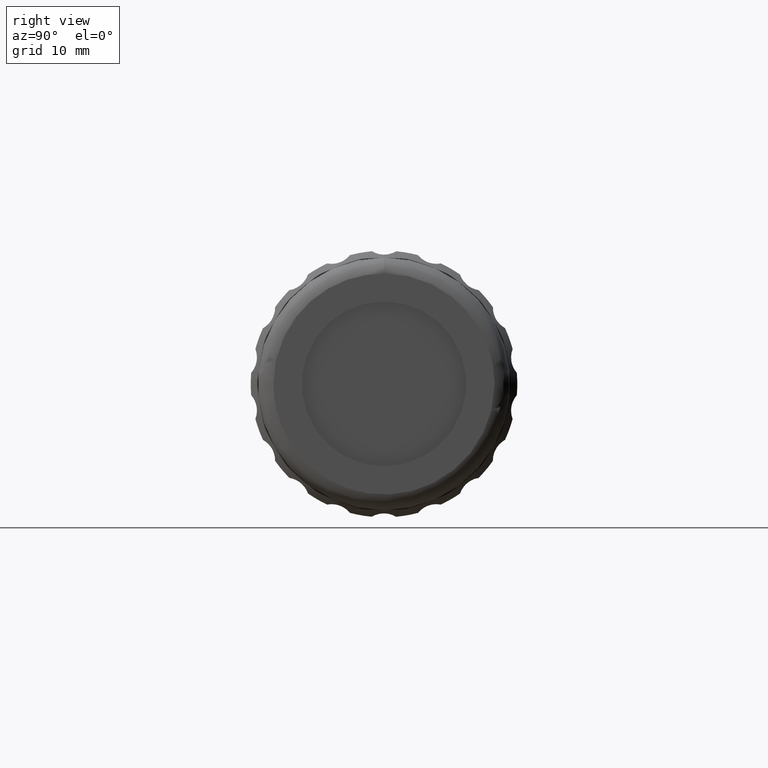
[diagram: clean part render]
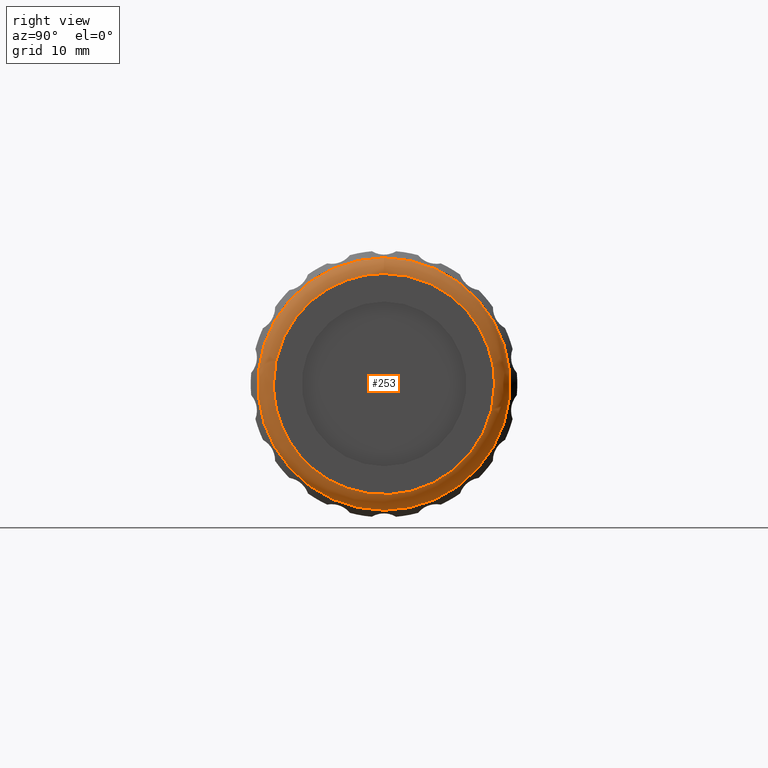
[diagram: same view with one face highlighted and labeled with its STEP entity id]
A machine part, right view. The second image highlights one B-rep face of the part: STEP entity #253.
In plain terms, the highlighted face is a freeform B-spline surface patch.
Its self-contained STEP definition (entity closure, byte-faithful):
#2 = CARTESIAN_POINT ( 'NONE',  ( 69.61843091013260221, 29.92096199999999939, 0.000000000000000000 ) ) ;
#71 = CARTESIAN_POINT ( 'NONE',  ( 70.44685803487880094, 37.76137322946063790, 14.09999999999999964 ) ) ;
#94 = CARTESIAN_POINT ( 'NONE',  ( 70.44685803487880094, 31.92096199999999584, -1.036051192078660836E-15 ) ) ;
#118 = CIRCLE ( 'NONE', #978, 16.10000000000000142 ) ;
#130 = CARTESIAN_POINT ( 'NONE',  ( 68.44685803487880094, 29.92096199999999584, -32.20000000000000284 ) ) ;
#142 = CARTESIAN_POINT ( 'NONE',  ( 70.44685803487880094, 30.74938912474618391, 0.000000000000000000 ) ) ;
#182 = EDGE_LOOP ( 'NONE', ( #1275, #815, #1419 ) ) ;
#197 = CARTESIAN_POINT ( 'NONE',  ( 70.44685803487880094, 31.92096199999999584, -28.19999999999999929 ) ) ;
#253 = ADVANCED_FACE ( 'NONE', ( #1406, #600 ), #683, .T. ) ;
#300 = CARTESIAN_POINT ( 'NONE',  ( 69.61843091013260221, 29.92096199999999584, 32.20000000000000284 ) ) ;
#310 = CARTESIAN_POINT ( 'NONE',  ( 70.44685803487880094, 60.12096199999999868, -28.20000000000000284 ) ) ;
#321 = CARTESIAN_POINT ( 'NONE',  ( 70.44685803487880094, 31.92096199999999229, -28.20000000000000284 ) ) ;
#407 = EDGE_CURVE ( 'NONE', #2024, #2024, #118, .T. ) ;
#464 = CARTESIAN_POINT ( 'NONE',  ( 68.44685803487878673, 62.12096199999999868, 0.000000000000000000 ) ) ;
#487 = CARTESIAN_POINT ( 'NONE',  ( 70.44685803487880094, 31.92096199999999229, 28.20000000000000284 ) ) ;
#497 = CARTESIAN_POINT ( 'NONE',  ( 70.44685803487880094, 31.92096199999999584, -1.036051192078660836E-15 ) ) ;
#524 = CARTESIAN_POINT ( 'NONE',  ( 70.44685803487880094, 31.92096199999999584, -1.036051192078660836E-15 ) ) ;
#530 = EDGE_CURVE ( 'NONE', #1745, #2099, #1918, .T. ) ;
#534 = DIRECTION ( 'NONE',  ( 0.000000000000000000, 0.000000000000000000, 1.000000000000000000 ) ) ;
#543 = EDGE_CURVE ( 'NONE', #1932, #1745, #1262, .T. ) ;
#571 = CARTESIAN_POINT ( 'NONE',  ( 70.44685803487880094, 60.12096199999999868, 8.259588770539359359 ) ) ;
#600 = FACE_OUTER_BOUND ( 'NONE', #798, .T. ) ;
#611 = CARTESIAN_POINT ( 'NONE',  ( 68.44685803487880094, 62.12096200000000579, -32.20000000000000284 ) ) ;
#623 = CARTESIAN_POINT ( 'NONE',  ( 68.44685803487880094, 29.92096199999999584, 32.20000000000000284 ) ) ;
#634 = CARTESIAN_POINT ( 'NONE',  ( 70.44685803487880094, 61.29253487525379995, 0.000000000000000000 ) ) ;
#658 = CARTESIAN_POINT ( 'NONE',  ( 70.44685803487880094, 60.12096199999999868, 0.000000000000000000 ) ) ;
#680 = CARTESIAN_POINT ( 'NONE',  ( 70.44685803487880094, 30.74938912474619102, -30.54314575050762315 ) ) ;
#683 =( BOUNDED_SURFACE ( )  B_SPLINE_SURFACE ( 3, 3, ( 
 ( #1094, #611, #130, #783, #623, #1924, #464 ),
 ( #1114, #1809, #1461, #2, #300, #995, #2089 ),
 ( #634, #1982, #680, #142, #981, #1641, #842 ),
 ( #658, #310, #321, #1283, #487, #1612, #1629 ) ),
 .UNSPECIFIED., .F., .T., .T. ) 
 B_SPLINE_SURFACE_WITH_KNOTS ( ( 4, 4 ),
 ( 4, 3, 4 ),
 ( 0.000000000000000000, 1.000000000000000000 ),
 ( 0.000000000000000000, 0.5000000000000000000, 1.000000000000000000 ),
 .UNSPECIFIED. ) 
 GEOMETRIC_REPRESENTATION_ITEM ( )  RATIONAL_B_SPLINE_SURFACE ( (
 ( 1.000000000000000000, 0.3333333333333333148, 0.3333333333333333148, 1.000000000000000000, 0.3333333333333333148, 0.3333333333333333148, 1.000000000000000000),
 ( 0.8047378541243649375, 0.2682459513747882940, 0.2682459513747882940, 0.8047378541243649375, 0.2682459513747882940, 0.2682459513747882940, 0.8047378541243649375),
 ( 0.8047378541243649375, 0.2682459513747882940, 0.2682459513747882940, 0.8047378541243649375, 0.2682459513747882940, 0.2682459513747882940, 0.8047378541243649375),
 ( 1.000000000000000000, 0.3333333333333333148, 0.3333333333333333148, 1.000000000000000000, 0.3333333333333333148, 0.3333333333333333148, 1.000000000000000000) ) ) 
 REPRESENTATION_ITEM ( '' )  SURFACE ( )  );
#722 = CARTESIAN_POINT ( 'NONE',  ( 70.44685803487880094, 54.28055077053935662, 14.09999999999999964 ) ) ;
#783 = CARTESIAN_POINT ( 'NONE',  ( 68.44685803487878673, 29.92096199999999584, 0.000000000000000000 ) ) ;
#798 = EDGE_LOOP ( 'NONE', ( #1811 ) ) ;
#815 = ORIENTED_EDGE ( 'NONE', *, *, #530, .T. ) ;
#842 = CARTESIAN_POINT ( 'NONE',  ( 70.44685803487880094, 61.29253487525379995, 0.000000000000000000 ) ) ;
#893 =( BOUNDED_CURVE ( )  B_SPLINE_CURVE ( 3, ( #524, #1017, #71, #1205 ),
 .UNSPECIFIED., .F., .T. ) 
 B_SPLINE_CURVE_WITH_KNOTS ( ( 4, 4 ),
 ( 0.000000000000000000, 1.000000000000000000 ),
 .UNSPECIFIED. ) 
 CURVE ( )  GEOMETRIC_REPRESENTATION_ITEM ( )  RATIONAL_B_SPLINE_CURVE ( ( 1.000000000000000000, 0.8047378541243649375, 0.8047378541243649375, 1.000000000000000000 ) ) 
 REPRESENTATION_ITEM ( '' )  );
#894 = CARTESIAN_POINT ( 'NONE',  ( 68.44685803487878673, 46.02096199999999726, 16.10000000000000142 ) ) ;
#978 = AXIS2_PLACEMENT_3D ( 'NONE', #1990, #1174, #534 ) ;
#981 = CARTESIAN_POINT ( 'NONE',  ( 70.44685803487880094, 30.74938912474618391, 30.54314575050763025 ) ) ;
#995 = CARTESIAN_POINT ( 'NONE',  ( 69.61843091013260221, 62.12096199999999868, 32.20000000000000284 ) ) ;
#1015 = CARTESIAN_POINT ( 'NONE',  ( 70.44685803487880094, 46.02096199999999726, 14.10000000000000142 ) ) ;
#1017 = CARTESIAN_POINT ( 'NONE',  ( 70.44685803487880094, 31.92096199999999584, 8.259588770539357583 ) ) ;
#1094 = CARTESIAN_POINT ( 'NONE',  ( 68.44685803487878673, 62.12096199999999868, 0.000000000000000000 ) ) ;
#1102 = CARTESIAN_POINT ( 'NONE',  ( 70.44685803487880094, 46.02096199999999726, 14.10000000000000142 ) ) ;
#1114 = CARTESIAN_POINT ( 'NONE',  ( 69.61843091013260221, 62.12096199999999868, 0.000000000000000000 ) ) ;
#1174 = DIRECTION ( 'NONE',  ( -1.000000000000000000, 0.000000000000000000, 0.000000000000000000 ) ) ;
#1194 = CARTESIAN_POINT ( 'NONE',  ( 70.44685803487880094, 60.12096199999999868, 0.000000000000000000 ) ) ;
#1205 = CARTESIAN_POINT ( 'NONE',  ( 70.44685803487880094, 46.02096199999999726, 14.10000000000000142 ) ) ;
#1262 =( BOUNDED_CURVE ( )  B_SPLINE_CURVE ( 3, ( #1015, #722, #571, #1194 ),
 .UNSPECIFIED., .F., .T. ) 
 B_SPLINE_CURVE_WITH_KNOTS ( ( 4, 4 ),
 ( 0.000000000000000000, 1.000000000000000000 ),
 .UNSPECIFIED. ) 
 CURVE ( )  GEOMETRIC_REPRESENTATION_ITEM ( )  RATIONAL_B_SPLINE_CURVE ( ( 1.000000000000000000, 0.8047378541243649375, 0.8047378541243649375, 1.000000000000000000 ) ) 
 REPRESENTATION_ITEM ( '' )  );
#1275 = ORIENTED_EDGE ( 'NONE', *, *, #543, .T. ) ;
#1283 = CARTESIAN_POINT ( 'NONE',  ( 70.44685803487880094, 31.92096199999999584, 0.000000000000000000 ) ) ;
#1406 = FACE_OUTER_BOUND ( 'NONE', #182, .T. ) ;
#1419 = ORIENTED_EDGE ( 'NONE', *, *, #1715, .T. ) ;
#1461 = CARTESIAN_POINT ( 'NONE',  ( 69.61843091013260221, 29.92096199999999584, -32.20000000000000284 ) ) ;
#1505 = CARTESIAN_POINT ( 'NONE',  ( 70.44685803487880094, 60.12096199999999868, 0.000000000000000000 ) ) ;
#1547 = CARTESIAN_POINT ( 'NONE',  ( 70.44685803487880094, 60.12096199999999868, 0.000000000000000000 ) ) ;
#1612 = CARTESIAN_POINT ( 'NONE',  ( 70.44685803487880094, 60.12096199999999868, 28.20000000000000284 ) ) ;
#1629 = CARTESIAN_POINT ( 'NONE',  ( 70.44685803487880094, 60.12096199999999868, 0.000000000000000000 ) ) ;
#1641 = CARTESIAN_POINT ( 'NONE',  ( 70.44685803487880094, 61.29253487525381416, 30.54314575050762315 ) ) ;
#1650 = CARTESIAN_POINT ( 'NONE',  ( 70.44685803487880094, 60.12096200000000579, -28.19999999999999929 ) ) ;
#1715 = EDGE_CURVE ( 'NONE', #2099, #1932, #893, .T. ) ;
#1745 = VERTEX_POINT ( 'NONE', #1547 ) ;
#1809 = CARTESIAN_POINT ( 'NONE',  ( 69.61843091013260221, 62.12096199999999868, -32.20000000000000284 ) ) ;
#1811 = ORIENTED_EDGE ( 'NONE', *, *, #407, .F. ) ;
#1918 =( BOUNDED_CURVE ( )  B_SPLINE_CURVE ( 3, ( #1505, #1650, #197, #497 ),
 .UNSPECIFIED., .F., .F. ) 
 B_SPLINE_CURVE_WITH_KNOTS ( ( 4, 4 ),
 ( 0.000000000000000000, 1.000000000000000000 ),
 .UNSPECIFIED. ) 
 CURVE ( )  GEOMETRIC_REPRESENTATION_ITEM ( )  RATIONAL_B_SPLINE_CURVE ( ( 1.000000000000000000, 0.3333333333333333703, 0.3333333333333333703, 1.000000000000000000 ) ) 
 REPRESENTATION_ITEM ( '' )  );
#1924 = CARTESIAN_POINT ( 'NONE',  ( 68.44685803487880094, 62.12096200000000579, 32.20000000000000284 ) ) ;
#1932 = VERTEX_POINT ( 'NONE', #1102 ) ;
#1982 = CARTESIAN_POINT ( 'NONE',  ( 70.44685803487880094, 61.29253487525381416, -30.54314575050762315 ) ) ;
#1990 = CARTESIAN_POINT ( 'NONE',  ( 68.44685803487878673, 46.02096199999999726, 0.000000000000000000 ) ) ;
#2024 = VERTEX_POINT ( 'NONE', #894 ) ;
#2089 = CARTESIAN_POINT ( 'NONE',  ( 69.61843091013260221, 62.12096199999999868, 0.000000000000000000 ) ) ;
#2099 = VERTEX_POINT ( 'NONE', #94 ) ;